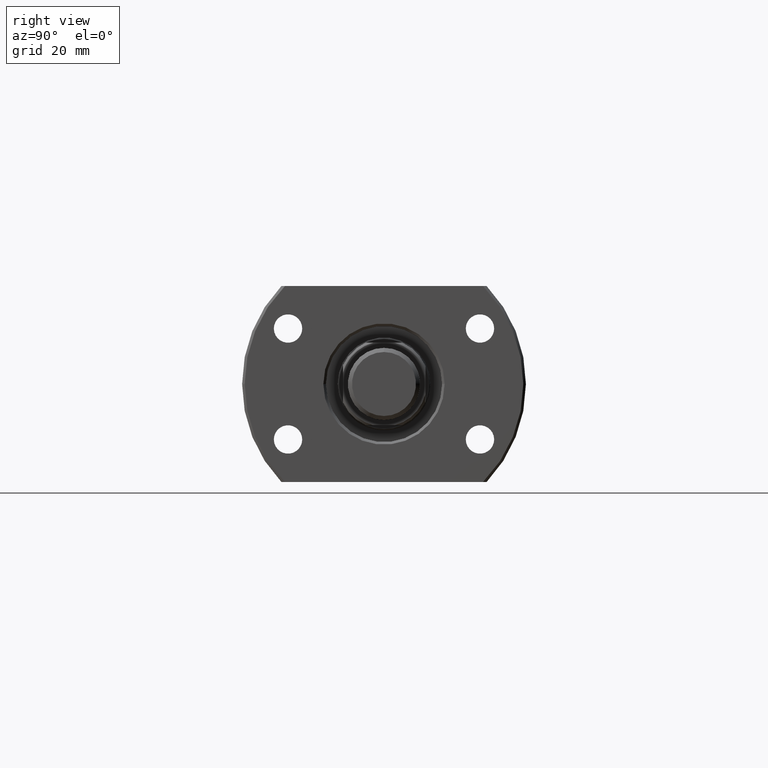
[diagram: clean part render]
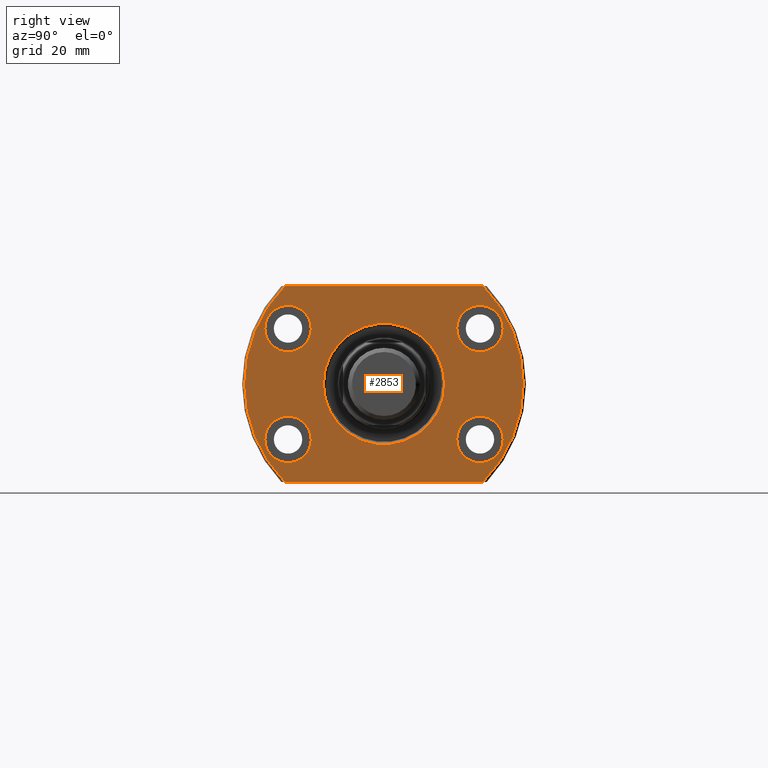
[diagram: same view with one face highlighted and labeled with its STEP entity id]
A machine part, right view. The second image highlights one B-rep face of the part: STEP entity #2853.
In plain terms, the highlighted planar face has unit normal (-1, -0, 0).
Its self-contained STEP definition (entity closure, byte-faithful):
#31 = FACE_BOUND ( 'NONE', #2667, .T. ) ;
#37 = EDGE_CURVE ( 'NONE', #1219, #1908, #1488, .T. ) ;
#41 = AXIS2_PLACEMENT_3D ( 'NONE', #3603, #1675, #3104 ) ;
#61 = DIRECTION ( 'NONE',  ( 1.000000000000000000, 9.242617352055502386E-18, -0.000000000000000000 ) ) ;
#82 = VERTEX_POINT ( 'NONE', #1203 ) ;
#92 = CIRCLE ( 'NONE', #1024, 4.500000000000000888 ) ;
#103 = VERTEX_POINT ( 'NONE', #368 ) ;
#104 = AXIS2_PLACEMENT_3D ( 'NONE', #980, #2141, #713 ) ;
#148 = AXIS2_PLACEMENT_3D ( 'NONE', #1369, #2515, #1673 ) ;
#160 = DIRECTION ( 'NONE',  ( -1.000000000000000000, -9.242617352055502386E-18, 0.000000000000000000 ) ) ;
#171 = ORIENTED_EDGE ( 'NONE', *, *, #37, .T. ) ;
#206 = ORIENTED_EDGE ( 'NONE', *, *, #3070, .F. ) ;
#242 = CARTESIAN_POINT ( 'NONE',  ( 26.50000000000000355, -11.75000000000071054, 1.438959988998140752E-15 ) ) ;
#278 = CARTESIAN_POINT ( 'NONE',  ( 26.50000000000000355, -27.00000000000000000, 0.000000000000000000 ) ) ;
#311 = ORIENTED_EDGE ( 'NONE', *, *, #3147, .F. ) ;
#340 = CARTESIAN_POINT ( 'NONE',  ( 26.50000000000000355, -19.18332609325086580, -19.00000000000001066 ) ) ;
#368 = CARTESIAN_POINT ( 'NONE',  ( 26.50000000000066791, 23.09999999999923403, 10.75000000000000000 ) ) ;
#501 = EDGE_LOOP ( 'NONE', ( #1049, #1812 ) ) ;
#548 = PLANE ( 'NONE',  #2716 ) ;
#562 = DIRECTION ( 'NONE',  ( 2.852656382717415620E-14, 1.000000000000000000, 0.000000000000000000 ) ) ;
#600 = DIRECTION ( 'NONE',  ( 9.242617352055502386E-18, -1.000000000000000000, 0.000000000000000000 ) ) ;
#614 = AXIS2_PLACEMENT_3D ( 'NONE', #1032, #61, #2021 ) ;
#637 = ORIENTED_EDGE ( 'NONE', *, *, #1205, .F. ) ;
#713 = DIRECTION ( 'NONE',  ( 2.852656382717415620E-14, 1.000000000000000000, 0.000000000000000000 ) ) ;
#732 = ORIENTED_EDGE ( 'NONE', *, *, #3010, .T. ) ;
#784 = AXIS2_PLACEMENT_3D ( 'NONE', #2894, #1465, #2608 ) ;
#794 = ORIENTED_EDGE ( 'NONE', *, *, #1939, .F. ) ;
#840 = DIRECTION ( 'NONE',  ( 2.852656382717415620E-14, 1.000000000000000000, 0.000000000000000000 ) ) ;
#882 = FACE_BOUND ( 'NONE', #2079, .T. ) ;
#933 = CARTESIAN_POINT ( 'NONE',  ( 26.49999999999959499, -14.10000000000076881, -10.75000000000000000 ) ) ;
#937 = DIRECTION ( 'NONE',  ( 2.852656382717415620E-14, 1.000000000000000000, 0.000000000000000000 ) ) ;
#953 = DIRECTION ( 'NONE',  ( 1.000000000000000000, -2.886466111666351885E-14, 0.000000000000000000 ) ) ;
#964 = CIRCLE ( 'NONE', #3003, 4.500000000000000888 ) ;
#974 = EDGE_CURVE ( 'NONE', #2216, #1219, #3256, .T. ) ;
#976 = AXIS2_PLACEMENT_3D ( 'NONE', #993, #3277, #2986 ) ;
#980 = CARTESIAN_POINT ( 'NONE',  ( 26.50000000000054001, 18.59999999999923403, -10.75000000000000000 ) ) ;
#991 = CARTESIAN_POINT ( 'NONE',  ( 26.50000000000000355, -27.00000000000000000, -19.00000000000001066 ) ) ;
#993 = CARTESIAN_POINT ( 'NONE',  ( 26.49999999999946354, -18.60000000000076881, 10.75000000000000000 ) ) ;
#995 = VERTEX_POINT ( 'NONE', #2631 ) ;
#996 = LINE ( 'NONE', #2453, #2718 ) ;
#1024 = AXIS2_PLACEMENT_3D ( 'NONE', #2217, #1927, #840 ) ;
#1032 = CARTESIAN_POINT ( 'NONE',  ( 26.50000000000000355, 2.449293598294708386E-16, 0.000000000000000000 ) ) ;
#1049 = ORIENTED_EDGE ( 'NONE', *, *, #3691, .F. ) ;
#1067 = DIRECTION ( 'NONE',  ( 1.000000000000000000, -2.886466111666351885E-14, 0.000000000000000000 ) ) ;
#1084 = CIRCLE ( 'NONE', #3678, 4.500000000000000888 ) ;
#1121 = CARTESIAN_POINT ( 'NONE',  ( 26.50000000000066791, 23.09999999999923403, -10.75000000000000000 ) ) ;
#1148 = CIRCLE ( 'NONE', #1270, 4.500000000000000888 ) ;
#1172 = CARTESIAN_POINT ( 'NONE',  ( 26.50000000000054001, 18.59999999999923403, 10.75000000000000000 ) ) ;
#1187 = FACE_OUTER_BOUND ( 'NONE', #2858, .T. ) ;
#1190 = EDGE_LOOP ( 'NONE', ( #732, #1801 ) ) ;
#1203 = CARTESIAN_POINT ( 'NONE',  ( 26.50000000000000355, -19.18332609325086224, 19.00000000000000711 ) ) ;
#1205 = EDGE_CURVE ( 'NONE', #3462, #3092, #1148, .T. ) ;
#1219 = VERTEX_POINT ( 'NONE', #1530 ) ;
#1270 = AXIS2_PLACEMENT_3D ( 'NONE', #2258, #2276, #562 ) ;
#1304 = EDGE_CURVE ( 'NONE', #82, #3596, #2178, .T. ) ;
#1339 = CIRCLE ( 'NONE', #976, 4.500000000000000888 ) ;
#1369 = CARTESIAN_POINT ( 'NONE',  ( 26.50000000000000355, 2.449293598294708386E-16, 0.000000000000000000 ) ) ;
#1374 = CARTESIAN_POINT ( 'NONE',  ( 26.50000000000041211, 14.09999999999923403, 10.75000000000000000 ) ) ;
#1405 = DIRECTION ( 'NONE',  ( 2.852656382717415620E-14, 1.000000000000000000, 0.000000000000000000 ) ) ;
#1426 = EDGE_CURVE ( 'NONE', #1788, #3337, #1084, .T. ) ;
#1465 = DIRECTION ( 'NONE',  ( -1.000000000000000000, -9.242617352055502386E-18, 0.000000000000000000 ) ) ;
#1488 = CIRCLE ( 'NONE', #148, 27.00000000000000000 ) ;
#1530 = CARTESIAN_POINT ( 'NONE',  ( 26.50000000000000355, 19.18332609325086580, -19.00000000000001066 ) ) ;
#1592 = EDGE_LOOP ( 'NONE', ( #1630, #311 ) ) ;
#1605 = CARTESIAN_POINT ( 'NONE',  ( 26.49999999999933564, -23.10000000000076881, -10.75000000000000000 ) ) ;
#1630 = ORIENTED_EDGE ( 'NONE', *, *, #1426, .F. ) ;
#1673 = DIRECTION ( 'NONE',  ( 0.000000000000000000, 1.000000000000000000, 0.000000000000000000 ) ) ;
#1675 = DIRECTION ( 'NONE',  ( 1.000000000000000000, 9.242617352055502386E-18, -0.000000000000000000 ) ) ;
#1788 = VERTEX_POINT ( 'NONE', #1121 ) ;
#1801 = ORIENTED_EDGE ( 'NONE', *, *, #3686, .T. ) ;
#1812 = ORIENTED_EDGE ( 'NONE', *, *, #1955, .F. ) ;
#1823 = ORIENTED_EDGE ( 'NONE', *, *, #2509, .T. ) ;
#1908 = VERTEX_POINT ( 'NONE', #3253 ) ;
#1927 = DIRECTION ( 'NONE',  ( 1.000000000000000000, -2.883293662278287419E-14, -3.155443620884046521E-30 ) ) ;
#1939 = EDGE_CURVE ( 'NONE', #103, #2389, #2996, .T. ) ;
#1955 = EDGE_CURVE ( 'NONE', #2234, #3222, #92, .T. ) ;
#1966 = FACE_BOUND ( 'NONE', #501, .T. ) ;
#1991 = FACE_BOUND ( 'NONE', #1190, .T. ) ;
#1994 = CIRCLE ( 'NONE', #2721, 11.74999999999932498 ) ;
#2011 = FACE_BOUND ( 'NONE', #1592, .T. ) ;
#2019 = CARTESIAN_POINT ( 'NONE',  ( 26.49999999999933564, -23.10000000000076881, 10.75000000000000000 ) ) ;
#2021 = DIRECTION ( 'NONE',  ( 0.000000000000000000, 1.000000000000000000, 0.000000000000000000 ) ) ;
#2079 = EDGE_LOOP ( 'NONE', ( #637, #3450 ) ) ;
#2117 = AXIS2_PLACEMENT_3D ( 'NONE', #2554, #1067, #1405 ) ;
#2141 = DIRECTION ( 'NONE',  ( 1.000000000000000000, -2.883293662278287419E-14, -3.155443620884046521E-30 ) ) ;
#2164 = CARTESIAN_POINT ( 'NONE',  ( 26.50000000000054001, 18.59999999999923403, -10.75000000000000000 ) ) ;
#2170 = VERTEX_POINT ( 'NONE', #242 ) ;
#2178 = CIRCLE ( 'NONE', #41, 27.00000000000000000 ) ;
#2184 = CIRCLE ( 'NONE', #104, 4.500000000000000888 ) ;
#2209 = DIRECTION ( 'NONE',  ( -0.000000000000000000, 1.000000000000000000, 0.000000000000000000 ) ) ;
#2216 = VERTEX_POINT ( 'NONE', #340 ) ;
#2217 = CARTESIAN_POINT ( 'NONE',  ( 26.49999999999946354, -18.60000000000076881, 10.75000000000000000 ) ) ;
#2234 = VERTEX_POINT ( 'NONE', #2019 ) ;
#2258 = CARTESIAN_POINT ( 'NONE',  ( 26.49999999999946354, -18.60000000000076881, -10.75000000000000000 ) ) ;
#2276 = DIRECTION ( 'NONE',  ( 1.000000000000000000, -2.883293662278287419E-14, -3.155443620884046521E-30 ) ) ;
#2333 = DIRECTION ( 'NONE',  ( -1.000000000000000000, -9.242617352055502386E-18, 0.000000000000000000 ) ) ;
#2389 = VERTEX_POINT ( 'NONE', #1374 ) ;
#2420 = AXIS2_PLACEMENT_3D ( 'NONE', #1172, #953, #937 ) ;
#2453 = CARTESIAN_POINT ( 'NONE',  ( 26.50000000000000355, 19.88089535207168623, 19.00000000000001066 ) ) ;
#2489 = DIRECTION ( 'NONE',  ( 0.000000000000000000, -1.000000000000000000, 0.000000000000000000 ) ) ;
#2496 = EDGE_CURVE ( 'NONE', #3092, #3462, #964, .T. ) ;
#2509 = EDGE_CURVE ( 'NONE', #3596, #2216, #2580, .T. ) ;
#2515 = DIRECTION ( 'NONE',  ( 1.000000000000000000, 9.242617352055502386E-18, -0.000000000000000000 ) ) ;
#2554 = CARTESIAN_POINT ( 'NONE',  ( 26.50000000000054001, 18.59999999999923403, 10.75000000000000000 ) ) ;
#2580 = CIRCLE ( 'NONE', #614, 27.00000000000000000 ) ;
#2608 = DIRECTION ( 'NONE',  ( 0.000000000000000000, -1.000000000000000000, 0.000000000000000000 ) ) ;
#2631 = CARTESIAN_POINT ( 'NONE',  ( 26.50000000000000355, 11.74999999999861622, 0.000000000000000000 ) ) ;
#2667 = EDGE_LOOP ( 'NONE', ( #794, #3171 ) ) ;
#2716 = AXIS2_PLACEMENT_3D ( 'NONE', #278, #2333, #600 ) ;
#2718 = VECTOR ( 'NONE', #2209, 1000.000000000000000 ) ;
#2721 = AXIS2_PLACEMENT_3D ( 'NONE', #3258, #160, #2489 ) ;
#2742 = DIRECTION ( 'NONE',  ( 2.852656382717415620E-14, 1.000000000000000000, 0.000000000000000000 ) ) ;
#2778 = CIRCLE ( 'NONE', #784, 11.74999999999932498 ) ;
#2815 = CARTESIAN_POINT ( 'NONE',  ( 26.50000000000041211, 14.09999999999923403, -10.75000000000000000 ) ) ;
#2853 = ADVANCED_FACE ( 'NONE', ( #1991, #31, #1966, #882, #2011, #1187 ), #548, .F. ) ;
#2858 = EDGE_LOOP ( 'NONE', ( #206, #3514, #1823, #3620, #171 ) ) ;
#2894 = CARTESIAN_POINT ( 'NONE',  ( 26.50000000000000355, -7.069515144664183387E-13, 0.000000000000000000 ) ) ;
#2950 = EDGE_CURVE ( 'NONE', #2389, #103, #3006, .T. ) ;
#2977 = DIRECTION ( 'NONE',  ( -9.242617352055502386E-18, 1.000000000000000000, -0.000000000000000000 ) ) ;
#2986 = DIRECTION ( 'NONE',  ( 2.852656382717415620E-14, 1.000000000000000000, 0.000000000000000000 ) ) ;
#2989 = CARTESIAN_POINT ( 'NONE',  ( 26.49999999999959499, -14.10000000000076881, 10.75000000000000000 ) ) ;
#2996 = CIRCLE ( 'NONE', #2117, 4.500000000000000888 ) ;
#3003 = AXIS2_PLACEMENT_3D ( 'NONE', #3182, #3259, #3591 ) ;
#3006 = CIRCLE ( 'NONE', #2420, 4.500000000000000888 ) ;
#3010 = EDGE_CURVE ( 'NONE', #995, #2170, #2778, .T. ) ;
#3016 = DIRECTION ( 'NONE',  ( 1.000000000000000000, -2.883293662278287419E-14, -3.155443620884046521E-30 ) ) ;
#3019 = CARTESIAN_POINT ( 'NONE',  ( 26.50000000000000355, -27.00000000000000355, 0.000000000000000000 ) ) ;
#3070 = EDGE_CURVE ( 'NONE', #82, #1908, #996, .T. ) ;
#3092 = VERTEX_POINT ( 'NONE', #1605 ) ;
#3104 = DIRECTION ( 'NONE',  ( 0.000000000000000000, 1.000000000000000000, 0.000000000000000000 ) ) ;
#3147 = EDGE_CURVE ( 'NONE', #3337, #1788, #2184, .T. ) ;
#3171 = ORIENTED_EDGE ( 'NONE', *, *, #2950, .F. ) ;
#3182 = CARTESIAN_POINT ( 'NONE',  ( 26.49999999999946354, -18.60000000000076881, -10.75000000000000000 ) ) ;
#3222 = VERTEX_POINT ( 'NONE', #2989 ) ;
#3253 = CARTESIAN_POINT ( 'NONE',  ( 26.50000000000000355, 19.18332609325086935, 19.00000000000000711 ) ) ;
#3256 = LINE ( 'NONE', #991, #3364 ) ;
#3258 = CARTESIAN_POINT ( 'NONE',  ( 26.50000000000000355, -7.069515144664183387E-13, 0.000000000000000000 ) ) ;
#3259 = DIRECTION ( 'NONE',  ( 1.000000000000000000, -2.883293662278287419E-14, -3.155443620884046521E-30 ) ) ;
#3277 = DIRECTION ( 'NONE',  ( 1.000000000000000000, -2.883293662278287419E-14, -3.155443620884046521E-30 ) ) ;
#3337 = VERTEX_POINT ( 'NONE', #2815 ) ;
#3364 = VECTOR ( 'NONE', #2977, 1000.000000000000000 ) ;
#3450 = ORIENTED_EDGE ( 'NONE', *, *, #2496, .F. ) ;
#3462 = VERTEX_POINT ( 'NONE', #933 ) ;
#3514 = ORIENTED_EDGE ( 'NONE', *, *, #1304, .T. ) ;
#3591 = DIRECTION ( 'NONE',  ( 2.852656382717415620E-14, 1.000000000000000000, 0.000000000000000000 ) ) ;
#3596 = VERTEX_POINT ( 'NONE', #3019 ) ;
#3603 = CARTESIAN_POINT ( 'NONE',  ( 26.50000000000000355, 2.449293598294708386E-16, 0.000000000000000000 ) ) ;
#3620 = ORIENTED_EDGE ( 'NONE', *, *, #974, .T. ) ;
#3678 = AXIS2_PLACEMENT_3D ( 'NONE', #2164, #3016, #2742 ) ;
#3686 = EDGE_CURVE ( 'NONE', #2170, #995, #1994, .T. ) ;
#3691 = EDGE_CURVE ( 'NONE', #3222, #2234, #1339, .T. ) ;